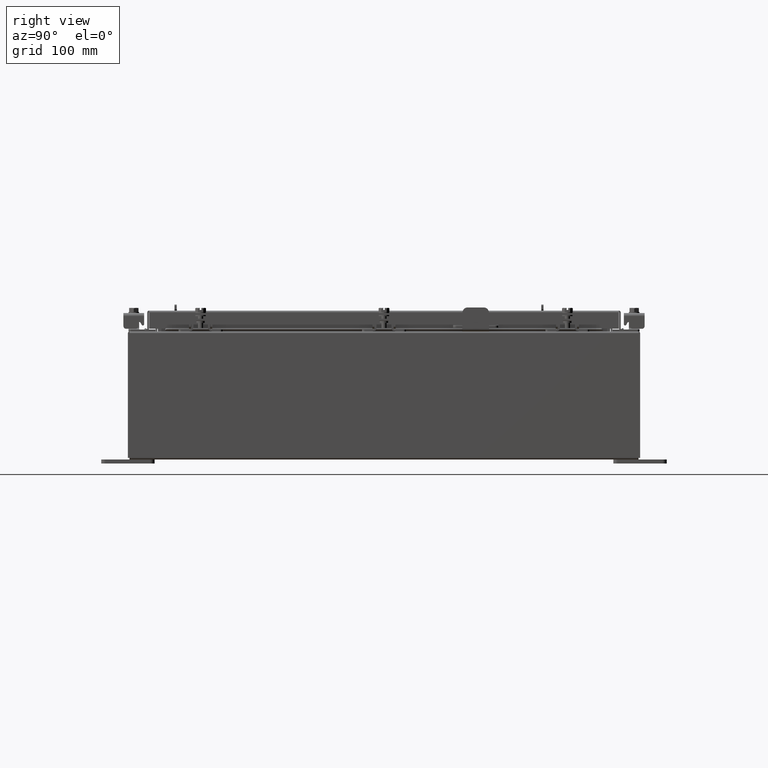
[diagram: clean part render]
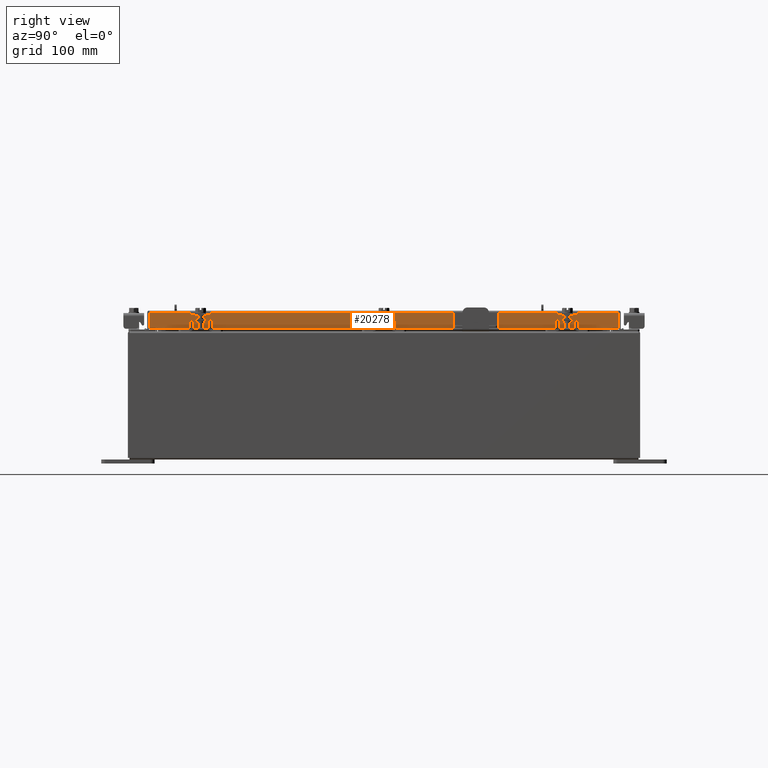
[diagram: same view with one face highlighted and labeled with its STEP entity id]
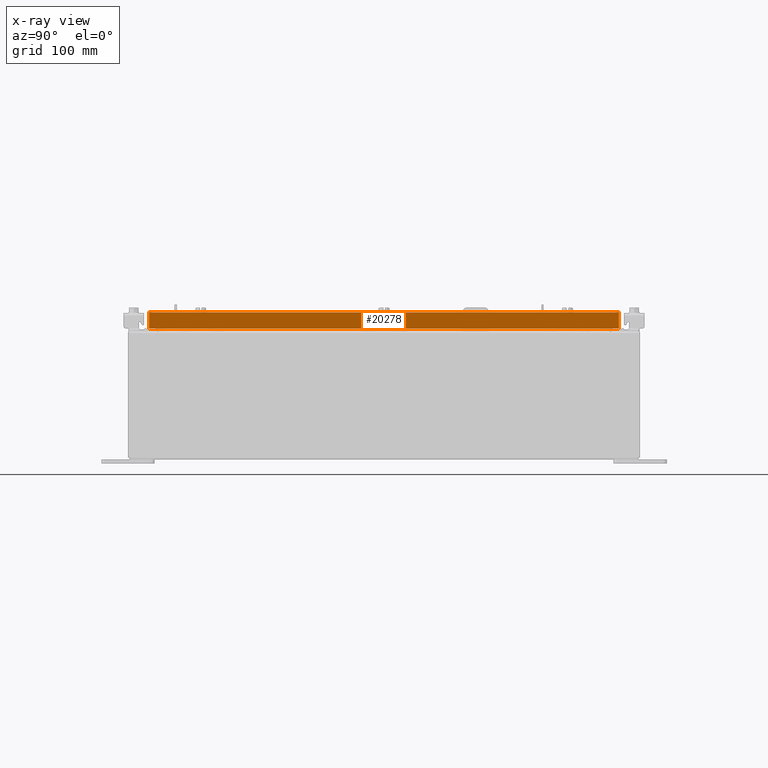
[diagram: x-ray of the same camera — body ghosted, the highlighted face saturated]
A machine part, right view. The second image highlights one B-rep face of the part: STEP entity #20278.
The next image is the same camera in x-ray: the body ghosted, the highlighted face saturated — about 0% of this face is hidden behind the body in this view.
In plain terms, the highlighted planar face has unit normal (1, 0, 0).
Its self-contained STEP definition (entity closure, byte-faithful):
#55 = DIRECTION ( 'NONE',  ( 2.818880942772360100E-015, 0.0000000000000000000, -1.000000000000000000 ) ) ;
#222 = CARTESIAN_POINT ( 'NONE',  ( 9.077999999999999400, -11.00515786437626900, -0.08770000000000115200 ) ) ;
#348 = EDGE_LOOP ( 'NONE', ( #5933, #1559, #16304, #15131, #4377, #19228 ) ) ;
#972 = CARTESIAN_POINT ( 'NONE',  ( 9.077999999999997600, 10.25515786437627200, -0.8500000000000005300 ) ) ;
#1559 = ORIENTED_EDGE ( 'NONE', *, *, #6189, .F. ) ;
#2115 = CARTESIAN_POINT ( 'NONE',  ( 9.078000000000001200, -11.09399999999999900, -0.8499999999999996400 ) ) ;
#2400 = LINE ( 'NONE', #8422, #7034 ) ;
#3607 = LINE ( 'NONE', #2115, #7745 ) ;
#4119 = VECTOR ( 'NONE', #5029, 39.37007874015748100 ) ;
#4377 = ORIENTED_EDGE ( 'NONE', *, *, #12294, .T. ) ;
#4995 = VERTEX_POINT ( 'NONE', #15971 ) ;
#5029 = DIRECTION ( 'NONE',  ( -2.818880942772360100E-015, -6.982962677686267500E-015, 1.000000000000000000 ) ) ;
#5377 = CARTESIAN_POINT ( 'NONE',  ( 9.077999999999999400, 11.00515786437627100, -0.08770000000000061100 ) ) ;
#5396 = CARTESIAN_POINT ( 'NONE',  ( 9.077999999999999400, -11.00515786437626900, -0.07469999999999978000 ) ) ;
#5893 = EDGE_CURVE ( 'NONE', #8875, #20087, #7960, .T. ) ;
#5933 = ORIENTED_EDGE ( 'NONE', *, *, #10867, .F. ) ;
#6189 = EDGE_CURVE ( 'NONE', #20087, #22188, #18351, .T. ) ;
#6945 = PLANE ( 'NONE',  #14081 ) ;
#6961 = CARTESIAN_POINT ( 'NONE',  ( 9.078000000000001200, -11.09399999999999900, -0.8499999999999996400 ) ) ;
#7034 = VECTOR ( 'NONE', #17161, 39.37007874015748100 ) ;
#7745 = VECTOR ( 'NONE', #19621, 39.37007874015748100 ) ;
#7960 = LINE ( 'NONE', #972, #19715 ) ;
#8422 = CARTESIAN_POINT ( 'NONE',  ( 9.077999999999999400, 4.319146728762002000E-018, -0.08770000000000061100 ) ) ;
#8875 = VERTEX_POINT ( 'NONE', #16685 ) ;
#8909 = DIRECTION ( 'NONE',  ( -2.818880942772360100E-015, -6.982962677686267500E-015, 1.000000000000000000 ) ) ;
#9160 = FACE_OUTER_BOUND ( 'NONE', #348, .T. ) ;
#9379 = LINE ( 'NONE', #5396, #14016 ) ;
#10006 = CARTESIAN_POINT ( 'NONE',  ( 9.077999999999997600, -10.25515786437626400, -0.8500000000000005300 ) ) ;
#10284 = CARTESIAN_POINT ( 'NONE',  ( 9.077999999999999400, 11.00515786437626900, 1.026992214834840500E-013 ) ) ;
#10455 = DIRECTION ( 'NONE',  ( 1.000000000000000000, 0.0000000000000000000, 2.818880942772360100E-015 ) ) ;
#10867 = EDGE_CURVE ( 'NONE', #22188, #11479, #9379, .T. ) ;
#10939 = EDGE_CURVE ( 'NONE', #4995, #8875, #3607, .T. ) ;
#11479 = VERTEX_POINT ( 'NONE', #222 ) ;
#12294 = EDGE_CURVE ( 'NONE', #4995, #21674, #18097, .T. ) ;
#13546 = CARTESIAN_POINT ( 'NONE',  ( 9.078000000000001200, -11.00515786437626400, -0.8499999999999996400 ) ) ;
#14016 = VECTOR ( 'NONE', #8909, 39.37007874015748100 ) ;
#14081 = AXIS2_PLACEMENT_3D ( 'NONE', #20942, #10455, #55 ) ;
#14531 = EDGE_CURVE ( 'NONE', #21674, #11479, #2400, .T. ) ;
#15131 = ORIENTED_EDGE ( 'NONE', *, *, #10939, .F. ) ;
#15971 = CARTESIAN_POINT ( 'NONE',  ( 9.078000000000001200, 11.00515786437627400, -0.8499999999999996400 ) ) ;
#16304 = ORIENTED_EDGE ( 'NONE', *, *, #5893, .F. ) ;
#16685 = CARTESIAN_POINT ( 'NONE',  ( 9.077999999999997600, 10.25515786437627200, -0.8500000000000005300 ) ) ;
#17161 = DIRECTION ( 'NONE',  ( 1.388273706127834800E-031, -1.000000000000000000, -4.924910751152449900E-017 ) ) ;
#18093 = DIRECTION ( 'NONE',  ( 0.0000000000000000000, -1.000000000000000000, 0.0000000000000000000 ) ) ;
#18097 = LINE ( 'NONE', #10284, #4119 ) ;
#18351 = LINE ( 'NONE', #6961, #18894 ) ;
#18894 = VECTOR ( 'NONE', #20957, 39.37007874015748100 ) ;
#19228 = ORIENTED_EDGE ( 'NONE', *, *, #14531, .T. ) ;
#19621 = DIRECTION ( 'NONE',  ( 0.0000000000000000000, -1.000000000000000000, 0.0000000000000000000 ) ) ;
#19715 = VECTOR ( 'NONE', #18093, 39.37007874015748100 ) ;
#20087 = VERTEX_POINT ( 'NONE', #10006 ) ;
#20278 = ADVANCED_FACE ( 'NONE', ( #9160 ), #6945, .T. ) ;
#20942 = CARTESIAN_POINT ( 'NONE',  ( 9.077999999999999400, 0.0000000000000000000, 2.585061485449906600E-014 ) ) ;
#20957 = DIRECTION ( 'NONE',  ( 0.0000000000000000000, -1.000000000000000000, 0.0000000000000000000 ) ) ;
#21674 = VERTEX_POINT ( 'NONE', #5377 ) ;
#22188 = VERTEX_POINT ( 'NONE', #13546 ) ;